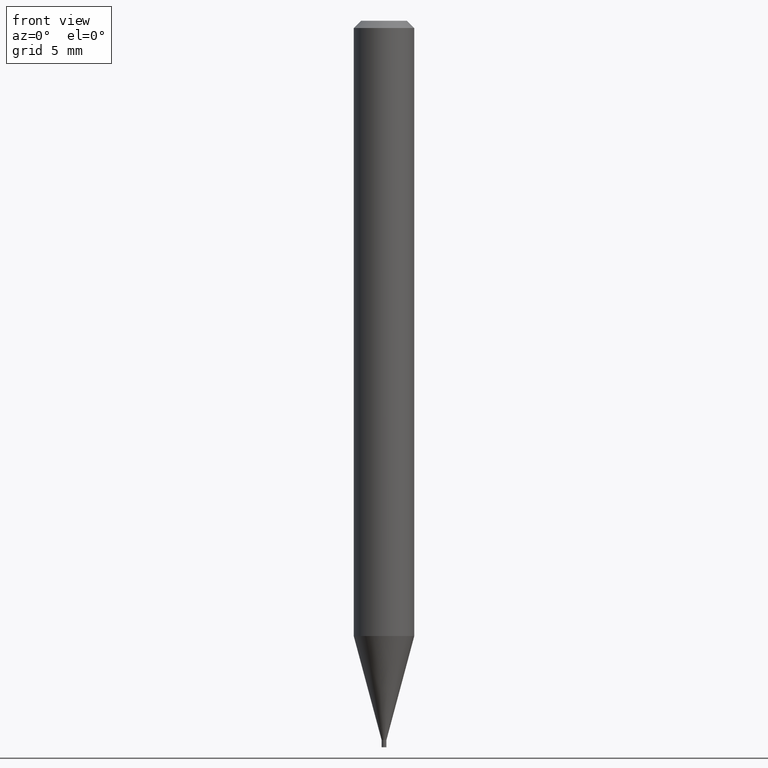
[diagram: clean part render]
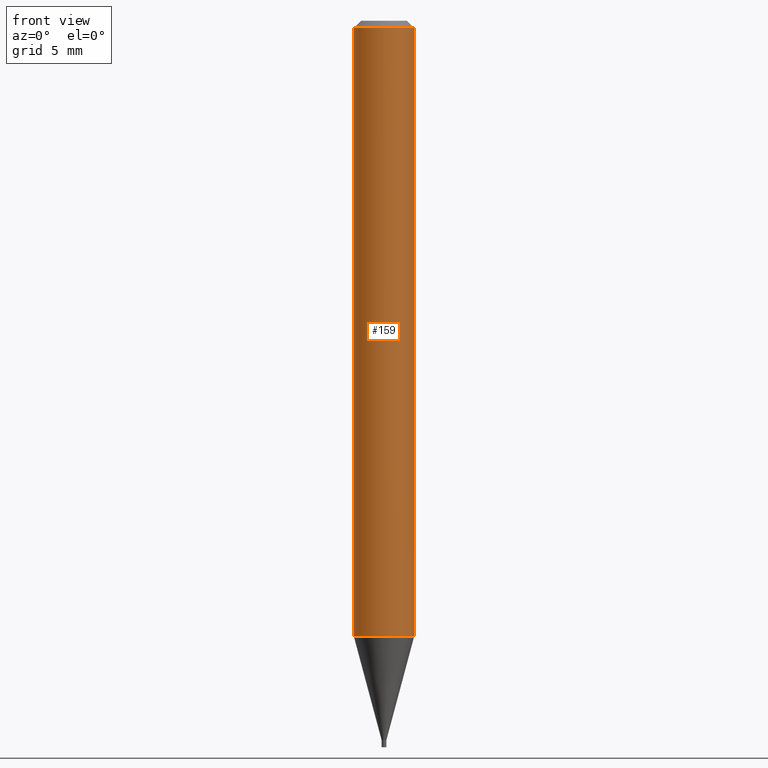
[diagram: same view with one face highlighted and labeled with its STEP entity id]
A machine part, front view. The second image highlights one B-rep face of the part: STEP entity #159.
In plain terms, the highlighted cylindrical surface (edge-blend (fillet) strip) has radius 1.5875 mm, axis along (-0, 0, 1).
Its self-contained STEP definition (entity closure, byte-faithful):
#4 = CYLINDRICAL_SURFACE ( 'NONE', #466, 0.06250000000000000000 ) ;
#6 = VECTOR ( 'NONE', #371, 39.37007874015748143 ) ;
#8 = VERTEX_POINT ( 'NONE', #418 ) ;
#9 = EDGE_CURVE ( 'NONE', #179, #300, #91, .T. ) ;
#27 = CARTESIAN_POINT ( 'NONE',  ( 3.106740881786981637E-29, -4.435602607543199263E-15, -1.270407078564789183 ) ) ;
#31 = DIRECTION ( 'NONE',  ( -2.445468806185136597E-29, 3.491481338843145583E-15, 1.000000000000000000 ) ) ;
#34 = AXIS2_PLACEMENT_3D ( 'NONE', #27, #31, #279 ) ;
#54 = CIRCLE ( 'NONE', #393, 0.06250000000000000000 ) ;
#78 = ORIENTED_EDGE ( 'NONE', *, *, #146, .F. ) ;
#86 = VERTEX_POINT ( 'NONE', #245 ) ;
#91 = CIRCLE ( 'NONE', #34, 0.06250000000000000000 ) ;
#92 = ORIENTED_EDGE ( 'NONE', *, *, #9, .T. ) ;
#114 = DIRECTION ( 'NONE',  ( -2.445468806185136597E-29, 3.491481338843145583E-15, 1.000000000000000000 ) ) ;
#115 = CARTESIAN_POINT ( 'NONE',  ( 3.668203209277705088E-31, -5.237222008264718399E-17, -0.01499999999999999944 ) ) ;
#119 = ORIENTED_EDGE ( 'NONE', *, *, #368, .T. ) ;
#146 = EDGE_CURVE ( 'NONE', #179, #8, #267, .T. ) ;
#150 = FACE_OUTER_BOUND ( 'NONE', #357, .T. ) ;
#156 = ORIENTED_EDGE ( 'NONE', *, *, #204, .F. ) ;
#159 = ADVANCED_FACE ( 'NONE', ( #150 ), #4, .T. ) ;
#164 = CARTESIAN_POINT ( 'NONE',  ( -0.06250000000000000000, 4.440892098500626162E-16, -3.074334431409316114E-30 ) ) ;
#179 = VERTEX_POINT ( 'NONE', #251 ) ;
#204 = EDGE_CURVE ( 'NONE', #8, #86, #54, .T. ) ;
#222 = DIRECTION ( 'NONE',  ( 1.000000000000000000, -6.982962677686266711E-15, 0.000000000000000000 ) ) ;
#245 = CARTESIAN_POINT ( 'NONE',  ( 0.06250000000000000000, -4.888073874380388472E-16, -0.01499999999999999944 ) ) ;
#251 = CARTESIAN_POINT ( 'NONE',  ( -0.06249999999999999306, -3.991513397693135858E-15, -1.270407078564789183 ) ) ;
#258 = DIRECTION ( 'NONE',  ( 1.000000000000000000, -6.982962677686266711E-15, 4.876176775795935793E-29 ) ) ;
#267 = LINE ( 'NONE', #164, #6 ) ;
#279 = DIRECTION ( 'NONE',  ( 1.000000000000000000, -6.982962677686262766E-15, 0.000000000000000000 ) ) ;
#293 = CARTESIAN_POINT ( 'NONE',  ( 0.000000000000000000, 0.000000000000000000, 0.000000000000000000 ) ) ;
#300 = VERTEX_POINT ( 'NONE', #339 ) ;
#319 = LINE ( 'NONE', #459, #374 ) ;
#339 = CARTESIAN_POINT ( 'NONE',  ( 0.06249999999999999306, -4.872037774898590932E-15, -1.270407078564789183 ) ) ;
#357 = EDGE_LOOP ( 'NONE', ( #78, #92, #119, #156 ) ) ;
#368 = EDGE_CURVE ( 'NONE', #300, #86, #319, .T. ) ;
#371 = DIRECTION ( 'NONE',  ( -2.445468806185136877E-29, 3.491481338843145188E-15, 1.000000000000000000 ) ) ;
#374 = VECTOR ( 'NONE', #416, 39.37007874015748143 ) ;
#393 = AXIS2_PLACEMENT_3D ( 'NONE', #115, #399, #222 ) ;
#399 = DIRECTION ( 'NONE',  ( -2.445468806185136597E-29, 3.491481338843145583E-15, 1.000000000000000000 ) ) ;
#416 = DIRECTION ( 'NONE',  ( -2.445468806185136877E-29, 3.491481338843145188E-15, 1.000000000000000000 ) ) ;
#418 = CARTESIAN_POINT ( 'NONE',  ( -0.06250000000000000000, -1.799898203962860752E-15, -0.01499999999999999944 ) ) ;
#459 = CARTESIAN_POINT ( 'NONE',  ( 0.06250000000000000000, -4.364351673553916694E-16, 3.047610484872459871E-30 ) ) ;
#466 = AXIS2_PLACEMENT_3D ( 'NONE', #293, #114, #258 ) ;